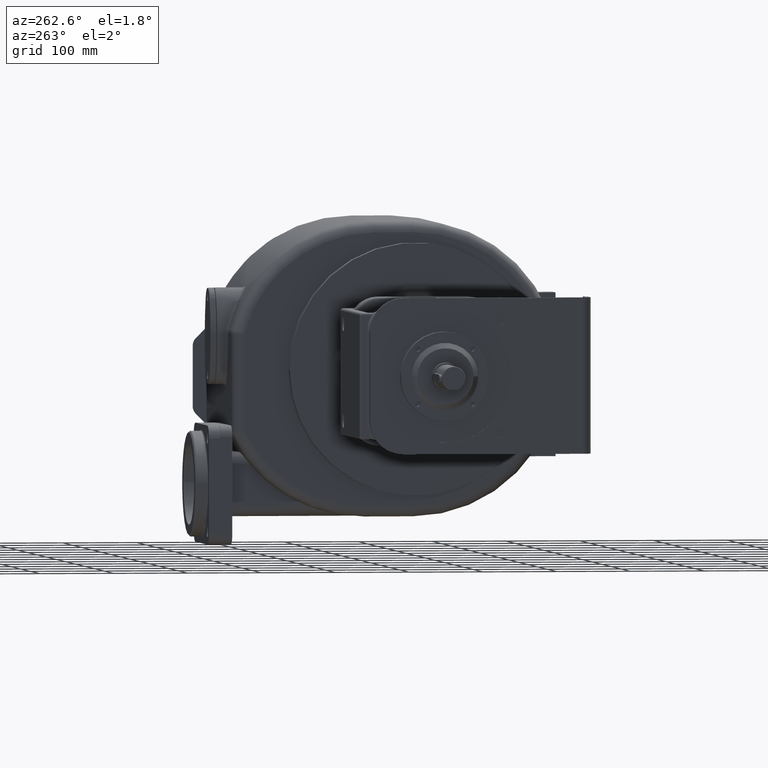
[diagram: clean part render]
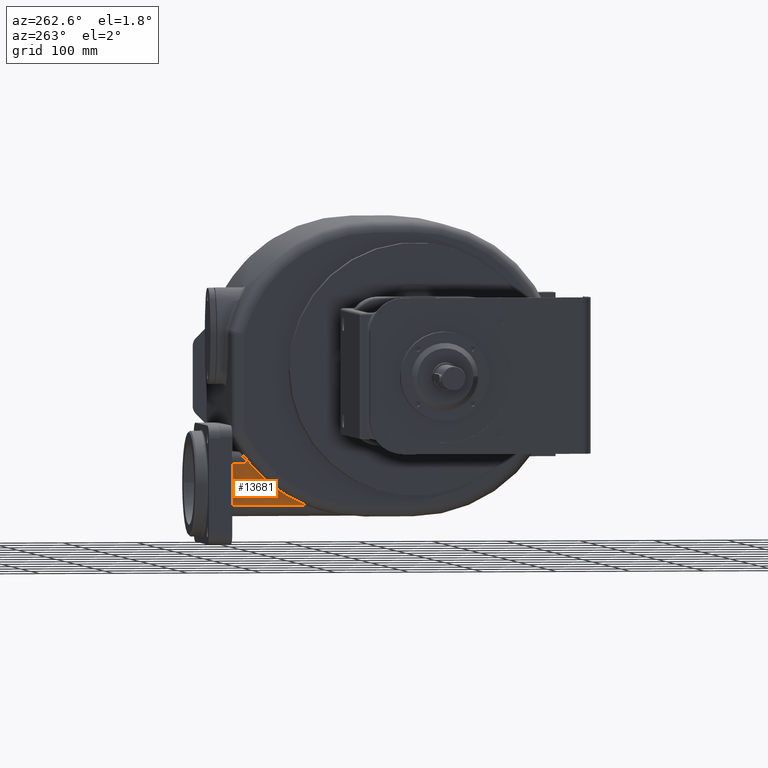
[diagram: same view with one face highlighted and labeled with its STEP entity id]
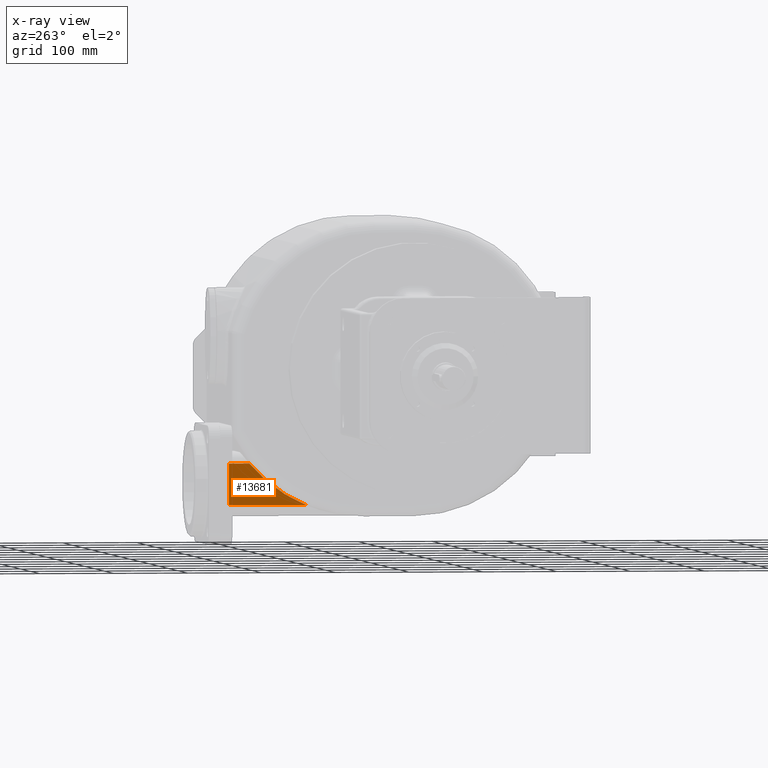
[diagram: x-ray of the same camera — body ghosted, the highlighted face saturated]
A machine part, auxiliary view. The second image highlights one B-rep face of the part: STEP entity #13681.
The next image is the same camera in x-ray: the body ghosted, the highlighted face saturated — about 0% of this face is hidden behind the body in this view.
In plain terms, the highlighted planar face has unit normal (-1, 0, 0).
Its self-contained STEP definition (entity closure, byte-faithful):
#2167=CARTESIAN_POINT('',(-4.3E1,2.658407785106E2,0.E0));
#2168=DIRECTION('',(-1.E0,0.E0,0.E0));
#2169=DIRECTION('',(0.E0,7.664387665671E-1,-6.423173803526E-1));
#2170=AXIS2_PLACEMENT_3D('',#2167,#2168,#2169);
#2199=DIRECTION('',(0.E0,1.E0,0.E0));
#2200=VECTOR('',#2199,2.802112632581E1);
#2201=CARTESIAN_POINT('',(-4.3E1,4.179788736742E2,-1.275E2));
#2202=LINE('',#2201,#2200);
#2203=DIRECTION('',(0.E0,1.E0,0.E0));
#2204=VECTOR('',#2203,1.044624580183E2);
#2205=CARTESIAN_POINT('',(-4.3E1,3.415375419817E2,-1.835E2));
#2206=LINE('',#2205,#2204);
#2431=DIRECTION('',(0.E0,0.E0,-1.E0));
#2432=VECTOR('',#2431,5.6E1);
#2433=CARTESIAN_POINT('',(-4.3E1,4.46E2,-1.275E2));
#2434=LINE('',#2433,#2432);
#9840=CARTESIAN_POINT('',(-4.3E1,4.179788736742E2,-1.275E2));
#9841=CARTESIAN_POINT('',(-4.3E1,4.46E2,-1.275E2));
#9842=VERTEX_POINT('',#9840);
#9843=VERTEX_POINT('',#9841);
#9844=CARTESIAN_POINT('',(-4.3E1,3.415375419817E2,-1.835E2));
#9845=CARTESIAN_POINT('',(-4.3E1,4.46E2,-1.835E2));
#9846=VERTEX_POINT('',#9844);
#9847=VERTEX_POINT('',#9845);
#13667=CARTESIAN_POINT('',(-4.3E1,2.E2,-1.125E2));
#13668=DIRECTION('',(-1.E0,0.E0,0.E0));
#13669=DIRECTION('',(0.E0,0.E0,-1.E0));
#13670=AXIS2_PLACEMENT_3D('',#13667,#13668,#13669);
#13671=PLANE('',#13670);
#13673=ORIENTED_EDGE('',*,*,#13672,.F.);
#13674=ORIENTED_EDGE('',*,*,#13643,.T.);
#13676=ORIENTED_EDGE('',*,*,#13675,.T.);
#13678=ORIENTED_EDGE('',*,*,#13677,.F.);
#13679=EDGE_LOOP('',(#13673,#13674,#13676,#13678));
#13680=FACE_OUTER_BOUND('',#13679,.F.);
#13681=ADVANCED_FACE('',(#13680),#13671,.T.);
#2171=CIRCLE('',#2170,1.985E2);
#13643=EDGE_CURVE('',#9842,#9846,#2171,.T.);
#13672=EDGE_CURVE('',#9842,#9843,#2202,.T.);
#13675=EDGE_CURVE('',#9846,#9847,#2206,.T.);
#13677=EDGE_CURVE('',#9843,#9847,#2434,.T.);